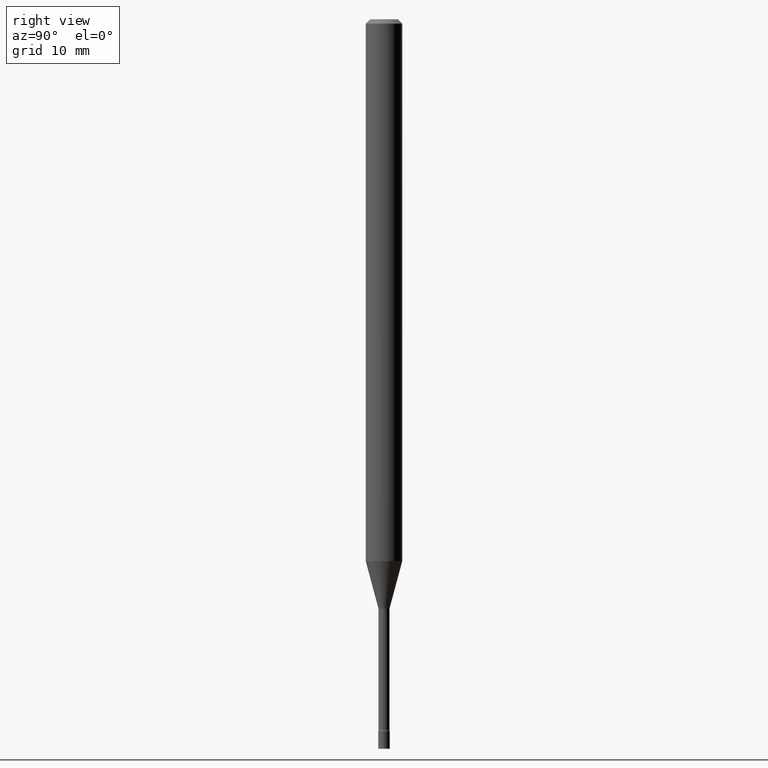
[diagram: clean part render]
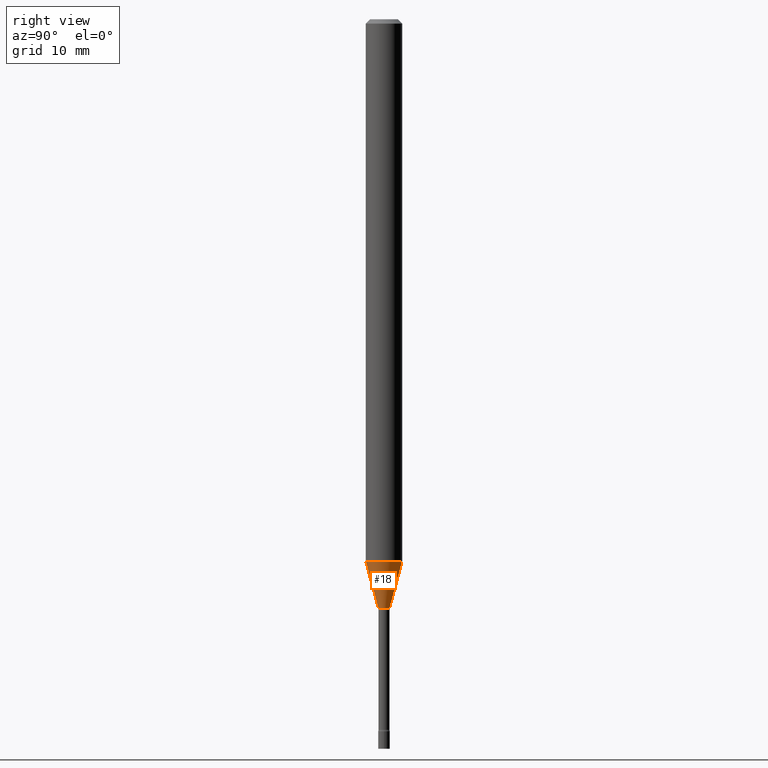
[diagram: same view with one face highlighted and labeled with its STEP entity id]
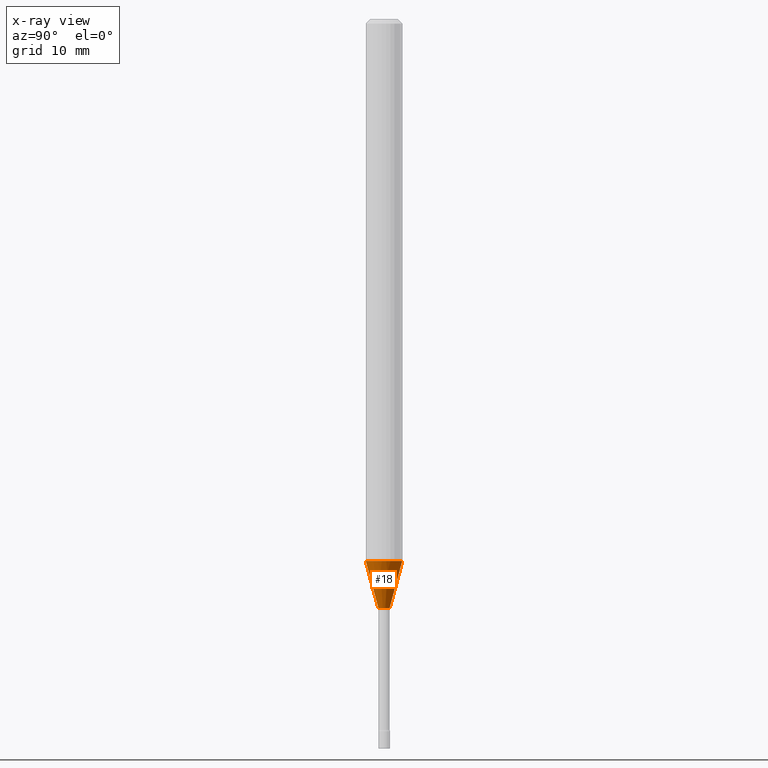
[diagram: x-ray of the same camera — body ghosted, the highlighted face saturated]
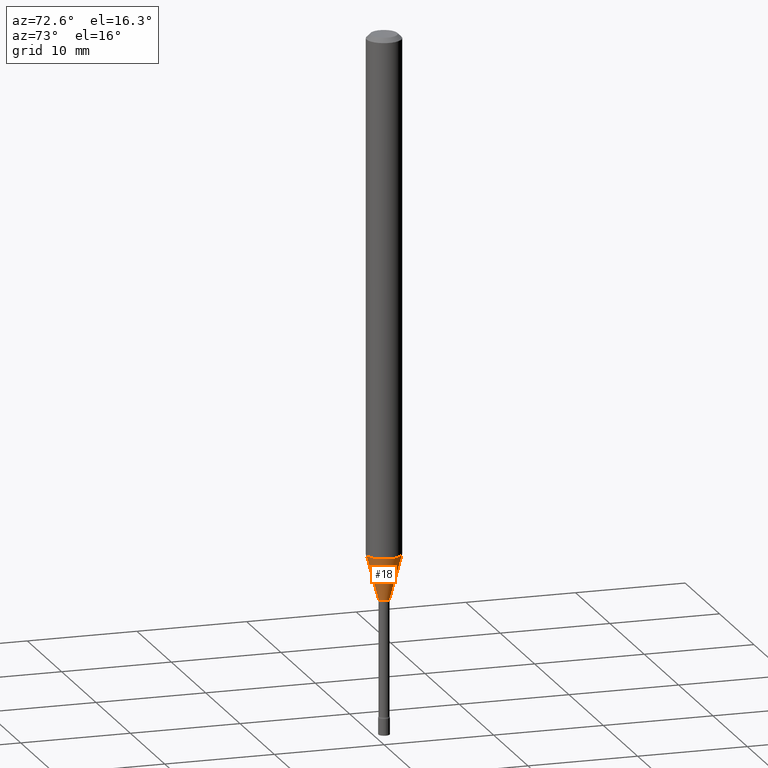
[diagram: same view with one face highlighted and labeled with its STEP entity id]
A machine part, right view. The second image highlights one B-rep face of the part: STEP entity #18.
The next image is the same camera in x-ray: the body ghosted, the highlighted face saturated — about 0% of this face is hidden behind the body in this view.
A second angle (auxiliary view) of the same face is appended — the face is thin or edge-on in the first view.
In plain terms, the highlighted conical surface has half-angle 15 deg.
Its self-contained STEP definition (entity closure, byte-faithful):
#3 = VECTOR ( 'NONE', #344, 39.37007874015748143 ) ;
#8 = EDGE_CURVE ( 'NONE', #135, #253, #389, .T. ) ;
#18 = ADVANCED_FACE ( 'NONE', ( #102 ), #77, .T. ) ;
#27 = VECTOR ( 'NONE', #219, 39.37007874015748143 ) ;
#59 = CARTESIAN_POINT ( 'NONE',  ( 1.372137078140477580E-16, 0.01931111260565693613, -2.018092501787273285 ) ) ;
#62 = CARTESIAN_POINT ( 'NONE',  ( -1.348487785898990376E-16, -0.01931111260567103249, -2.018092501787273285 ) ) ;
#73 = ORIENTED_EDGE ( 'NONE', *, *, #8, .T. ) ;
#77 = CONICAL_SURFACE ( 'NONE', #326, 0.01931111260566398605, 0.2617993877991497964 ) ;
#91 = ORIENTED_EDGE ( 'NONE', *, *, #115, .T. ) ;
#102 = FACE_OUTER_BOUND ( 'NONE', #152, .T. ) ;
#113 = VERTEX_POINT ( 'NONE', #260 ) ;
#115 = EDGE_CURVE ( 'NONE', #253, #113, #133, .T. ) ;
#126 = EDGE_CURVE ( 'NONE', #135, #335, #428, .T. ) ;
#133 = LINE ( 'NONE', #59, #27 ) ;
#135 = VERTEX_POINT ( 'NONE', #302 ) ;
#152 = EDGE_LOOP ( 'NONE', ( #73, #91, #405, #421 ) ) ;
#171 = DIRECTION ( 'NONE',  ( -2.445424618103204141E-29, 3.491544618691502502E-15, 1.000000000000000000 ) ) ;
#172 = DIRECTION ( 'NONE',  ( -2.445424618103204141E-29, 3.491544618691502502E-15, 1.000000000000000000 ) ) ;
#219 = DIRECTION ( 'NONE',  ( 1.839019923739597160E-15, 0.2588190451025245142, 0.9659258262890673130 ) ) ;
#253 = VERTEX_POINT ( 'NONE', #515 ) ;
#259 = CIRCLE ( 'NONE', #391, 0.06250000000000000000 ) ;
#260 = CARTESIAN_POINT ( 'NONE',  ( 4.440892098501077785E-16, 0.06249999999999350520, -1.856909379709240637 ) ) ;
#268 = CARTESIAN_POINT ( 'NONE',  ( 4.935093085480082368E-29, -7.046260014637024819E-15, -2.018092501787273285 ) ) ;
#270 = CARTESIAN_POINT ( 'NONE',  ( -4.364351673553463099E-16, -0.06250000000000649480, -1.856909379709239971 ) ) ;
#302 = CARTESIAN_POINT ( 'NONE',  ( -1.348487785898990376E-16, -0.01931111260567103249, -2.018092501787273285 ) ) ;
#326 = AXIS2_PLACEMENT_3D ( 'NONE', #339, #171, #343 ) ;
#335 = VERTEX_POINT ( 'NONE', #270 ) ;
#339 = CARTESIAN_POINT ( 'NONE',  ( 4.935093085480082368E-29, -7.046260014637024819E-15, -2.018092501787273285 ) ) ;
#343 = DIRECTION ( 'NONE',  ( -6.982962677686265922E-15, -1.000000000000000000, 0.000000000000000000 ) ) ;
#344 = DIRECTION ( 'NONE',  ( -1.807323732225326984E-15, -0.2588190451025177419, 0.9659258262890690894 ) ) ;
#363 = AXIS2_PLACEMENT_3D ( 'NONE', #268, #172, #434 ) ;
#367 = DIRECTION ( 'NONE',  ( -2.445424618103204141E-29, 3.491544618691502502E-15, 1.000000000000000000 ) ) ;
#372 = CARTESIAN_POINT ( 'NONE',  ( 4.540931910727726052E-29, -6.483481952121574190E-15, -1.856909379709240415 ) ) ;
#389 = CIRCLE ( 'NONE', #363, 0.01931111260566398605 ) ;
#391 = AXIS2_PLACEMENT_3D ( 'NONE', #372, #367, #414 ) ;
#405 = ORIENTED_EDGE ( 'NONE', *, *, #453, .F. ) ;
#414 = DIRECTION ( 'NONE',  ( -6.982962677686265922E-15, -1.000000000000000000, 4.370956789862821150E-15 ) ) ;
#421 = ORIENTED_EDGE ( 'NONE', *, *, #126, .F. ) ;
#428 = LINE ( 'NONE', #62, #3 ) ;
#434 = DIRECTION ( 'NONE',  ( -6.982962677686265922E-15, -1.000000000000000000, 0.000000000000000000 ) ) ;
#453 = EDGE_CURVE ( 'NONE', #335, #113, #259, .T. ) ;
#515 = CARTESIAN_POINT ( 'NONE',  ( 2.906514588320780024E-16, 0.01931111260565693613, -2.018092501787273285 ) ) ;